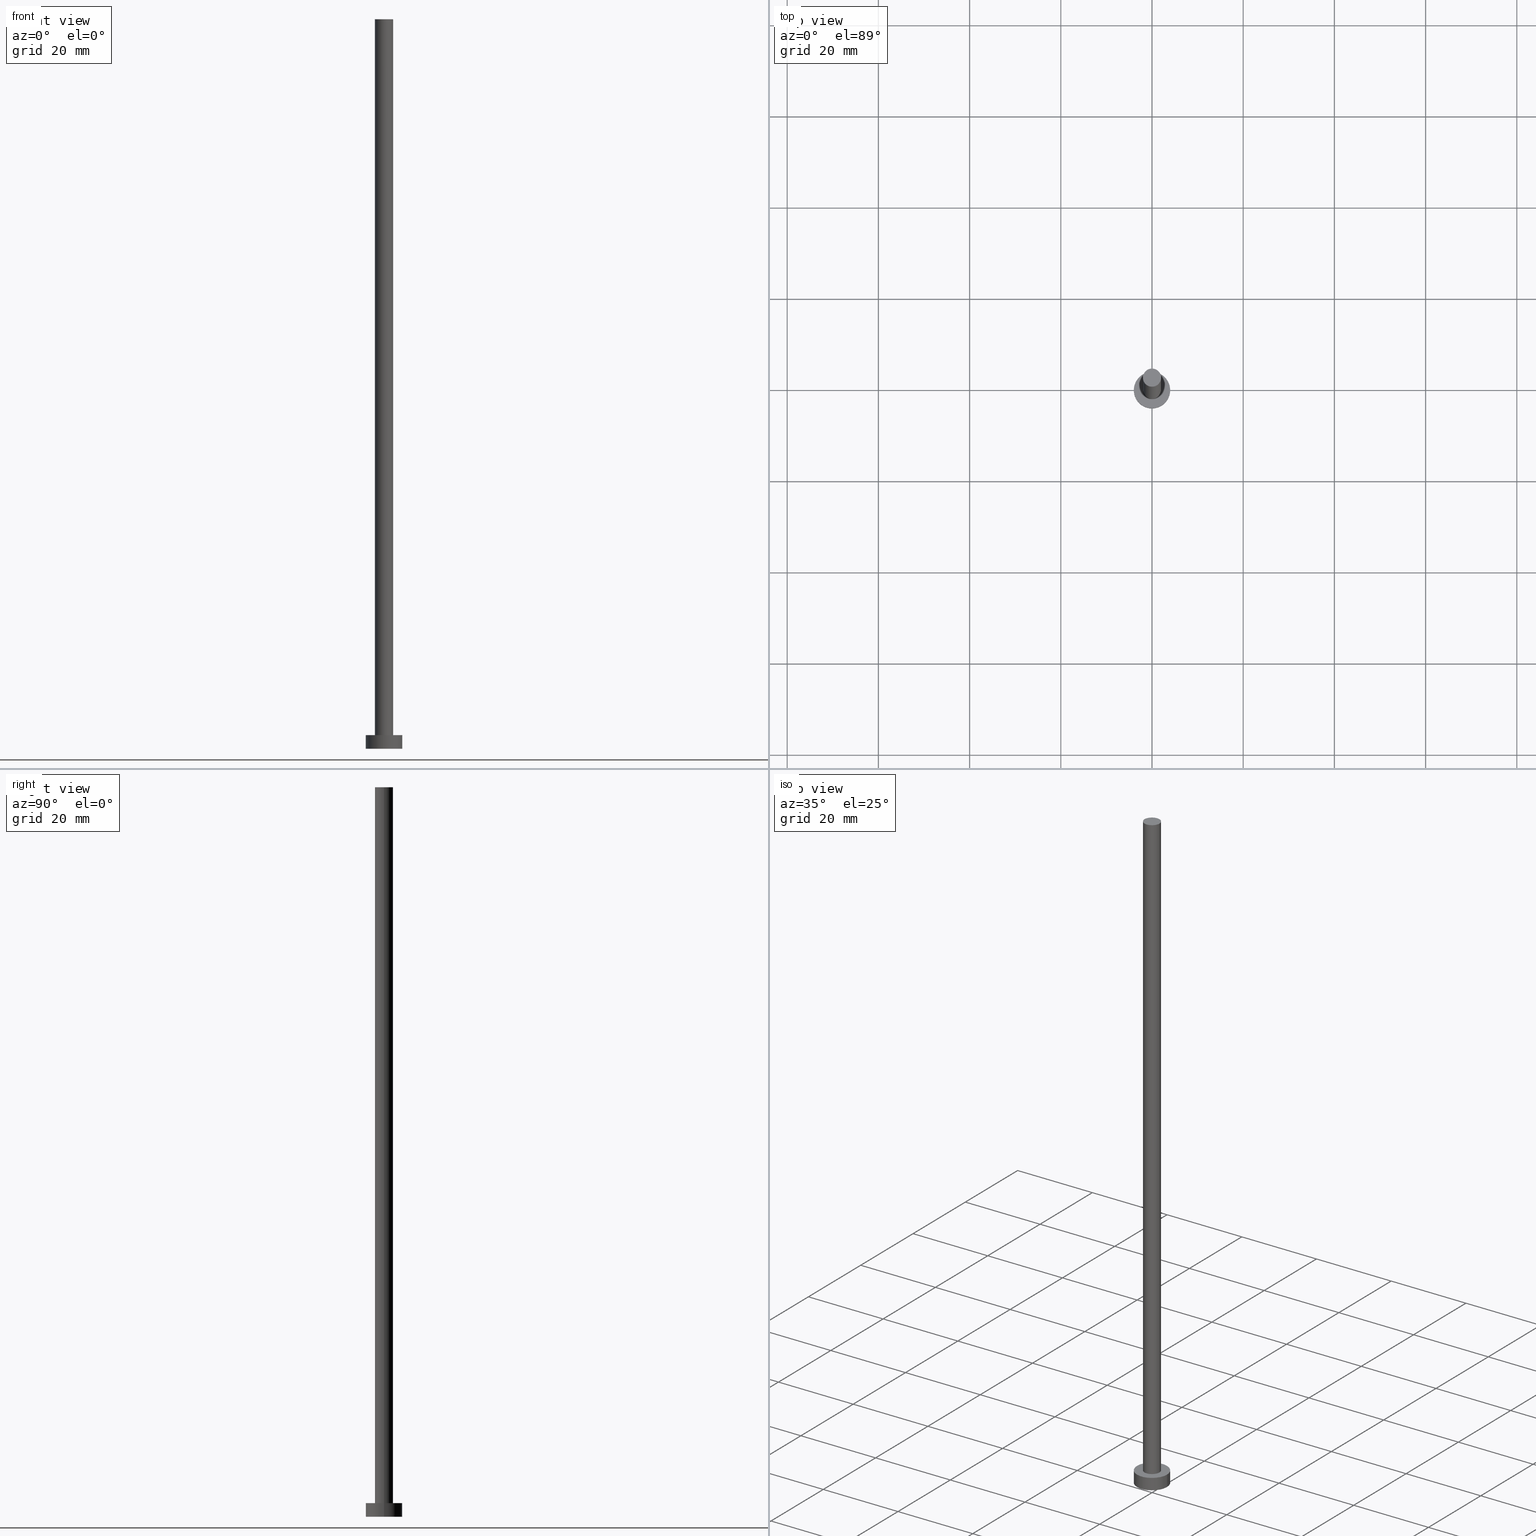
[diagram: canonical four-view strip — front | top / right | iso, engineering-drawing reading convention]
A machine part, canonical four-view strip (front | top / right | iso — engineering-drawing reading convention). The complete STEP part file that produces these views, byte-faithful:
ISO-10303-21;
HEADER;
FILE_DESCRIPTION (( 'STEP AP203' ),
    '1' );
FILE_NAME ('0d84.STEP',
    '2023-02-13T16:10:28',
    ( '' ),
    ( '' ),
    'SwSTEP 2.0',
    'SolidWorks 2019',
    '' );
FILE_SCHEMA (( 'CONFIG_CONTROL_DESIGN' ));
ENDSEC;

DATA;
#1 = DIRECTION ( 'NONE',  ( -0.000000000000000000, -0.000000000000000000, -1.000000000000000000 ) ) ;
#2 = AXIS2_PLACEMENT_3D ( 'NONE', #165, #85, #160 ) ;
#3 = APPROVAL_STATUS ( 'not_yet_approved' ) ;
#4 = AXIS2_PLACEMENT_3D ( 'NONE', #68, #56, #157 ) ;
#5 = AXIS2_PLACEMENT_3D ( 'NONE', #112, #1, #161 ) ;
#6 = ORIENTED_EDGE ( 'NONE', *, *, #110, .F. ) ;
#7 = DIRECTION ( 'NONE',  ( 1.000000000000000000, 0.000000000000000000, 0.000000000000000000 ) ) ;
#8 = PRODUCT_DEFINITION_SHAPE ( 'NONE', 'NONE',  #23 ) ;
#9 = APPLICATION_PROTOCOL_DEFINITION ( 'international standard', 'config_control_design', 1994, #78 ) ;
#10 = ADVANCED_FACE ( 'NONE', ( #150 ), #72, .T. ) ;
#11 = DIRECTION ( 'NONE',  ( 0.000000000000000000, 0.000000000000000000, 1.000000000000000000 ) ) ;
#12 = CARTESIAN_POINT ( 'NONE',  ( 0.000000000000000000, 0.000000000000000000, 3.000000000000000000 ) ) ;
#13 = CARTESIAN_POINT ( 'NONE',  ( -4.000000000000000000, 0.000000000000000000, 3.000000000000000000 ) ) ;
#14 = PERSON_AND_ORGANIZATION_ROLE ( 'design_supplier' ) ;
#15 = ORIENTED_EDGE ( 'NONE', *, *, #222, .F. ) ;
#16 = LOCAL_TIME ( 17, 10, 28.00000000000000000, #90 ) ;
#17 = DATE_AND_TIME ( #138, #16 ) ;
#18 = VERTEX_POINT ( 'NONE', #177 ) ;
#19 = PLANE ( 'NONE',  #132 ) ;
#20 = ORIENTED_EDGE ( 'NONE', *, *, #80, .T. ) ;
#21 = CALENDAR_DATE ( 2023, 13, 2 ) ;
#22 = DIRECTION ( 'NONE',  ( -1.000000000000000000, 0.000000000000000000, 0.000000000000000000 ) ) ;
#23 = PRODUCT_DEFINITION ( 'NEZN�M�', '', #44, #244 ) ;
#24 = CARTESIAN_POINT ( 'NONE',  ( 2.000000000000000000, 2.449293598294706414E-16, 160.0000000000000000 ) ) ;
#25 = LINE ( 'NONE', #113, #216 ) ;
#26 = CARTESIAN_POINT ( 'NONE',  ( 4.000000000000000000, 4.898587196589412829E-16, 0.000000000000000000 ) ) ;
#27 = CYLINDRICAL_SURFACE ( 'NONE', #5, 4.000000000000000000 ) ;
#28 = PERSON_AND_ORGANIZATION ( #81, #127 ) ;
#29 = CARTESIAN_POINT ( 'NONE',  ( 0.000000000000000000, 0.000000000000000000, 160.0000000000000000 ) ) ;
#30 = DATE_AND_TIME ( #242, #186 ) ;
#31 = APPROVAL_PERSON_ORGANIZATION ( #248, #51, #239 ) ;
#32 = CC_DESIGN_SECURITY_CLASSIFICATION ( #120, ( #44 ) ) ;
#33 = EDGE_CURVE ( 'NONE', #234, #175, #223, .T. ) ;
#34 = EDGE_LOOP ( 'NONE', ( #147, #95 ) ) ;
#35 = CARTESIAN_POINT ( 'NONE',  ( -4.000000000000000000, 0.000000000000000000, 0.000000000000000000 ) ) ;
#36 = EDGE_LOOP ( 'NONE', ( #49, #69 ) ) ;
#37 = LOCAL_TIME ( 17, 10, 28.00000000000000000, #140 ) ;
#38 = ORIENTED_EDGE ( 'NONE', *, *, #76, .F. ) ;
#39 = PERSON_AND_ORGANIZATION_ROLE ( 'classification_officer' ) ;
#40 = ORIENTED_EDGE ( 'NONE', *, *, #33, .T. ) ;
#41 = EDGE_CURVE ( 'NONE', #93, #152, #103, .T. ) ;
#42 = CARTESIAN_POINT ( 'NONE',  ( 0.000000000000000000, 0.000000000000000000, 3.000000000000000000 ) ) ;
#43 = DIRECTION ( 'NONE',  ( -0.000000000000000000, -0.000000000000000000, -1.000000000000000000 ) ) ;
#44 = PRODUCT_DEFINITION_FORMATION_WITH_SPECIFIED_SOURCE ( 'LIBOVOLN�', '', #67, .NOT_KNOWN. ) ;
#45 = CIRCLE ( 'NONE', #204, 4.000000000000000000 ) ;
#46 = COORDINATED_UNIVERSAL_TIME_OFFSET ( 1, 0, .AHEAD. ) ;
#47 = CC_DESIGN_DATE_AND_TIME_ASSIGNMENT ( #17, #213, ( #23 ) ) ;
#48 = VECTOR ( 'NONE', #43, 1000.000000000000000 ) ;
#49 = ORIENTED_EDGE ( 'NONE', *, *, #41, .T. ) ;
#50 = APPROVAL_DATE_TIME ( #30, #104 ) ;
#51 = APPROVAL ( #180, 'NEUR�EN�' ) ;
#52 = PERSON_AND_ORGANIZATION ( #81, #127 ) ;
#53 = DIRECTION ( 'NONE',  ( 1.000000000000000000, 0.000000000000000000, 0.000000000000000000 ) ) ;
#54 = DATE_AND_TIME ( #75, #37 ) ;
#55 = FACE_OUTER_BOUND ( 'NONE', #170, .T. ) ;
#56 = DIRECTION ( 'NONE',  ( -0.000000000000000000, -0.000000000000000000, -1.000000000000000000 ) ) ;
#57 = EDGE_CURVE ( 'NONE', #93, #218, #74, .T. ) ;
#58 = APPROVAL_STATUS ( 'not_yet_approved' ) ;
#59 = DIRECTION ( 'NONE',  ( 1.000000000000000000, 0.000000000000000000, 0.000000000000000000 ) ) ;
#60 = VECTOR ( 'NONE', #153, 1000.000000000000000 ) ;
#61 = FACE_BOUND ( 'NONE', #172, .T. ) ;
#62 = ADVANCED_FACE ( 'NONE', ( #238 ), #182, .T. ) ;
#63 = APPLICATION_PROTOCOL_DEFINITION ( 'international standard', 'config_control_design', 1994, #226 ) ;
#64 = AXIS2_PLACEMENT_3D ( 'NONE', #158, #201, #22 ) ;
#65 = AXIS2_PLACEMENT_3D ( 'NONE', #124, #92, #169 ) ;
#66 = CC_DESIGN_DATE_AND_TIME_ASSIGNMENT ( #176, #189, ( #120 ) ) ;
#67 = PRODUCT ( '0d84', '0d84', '', ( #129 ) ) ;
#68 = CARTESIAN_POINT ( 'NONE',  ( 0.000000000000000000, 0.000000000000000000, 160.0000000000000000 ) ) ;
#69 = ORIENTED_EDGE ( 'NONE', *, *, #133, .T. ) ;
#70 = ORIENTED_EDGE ( 'NONE', *, *, #133, .F. ) ;
#71 = DIRECTION ( 'NONE',  ( 1.000000000000000000, 0.000000000000000000, -0.000000000000000000 ) ) ;
#72 = CYLINDRICAL_SURFACE ( 'NONE', #64, 4.000000000000000000 ) ;
#73 = ORIENTED_EDGE ( 'NONE', *, *, #181, .F. ) ;
#74 = LINE ( 'NONE', #143, #48 ) ;
#75 = CALENDAR_DATE ( 2023, 13, 2 ) ;
#76 = EDGE_CURVE ( 'NONE', #136, #218, #241, .T. ) ;
#77 = CC_DESIGN_PERSON_AND_ORGANIZATION_ASSIGNMENT ( #134, #14, ( #44 ) ) ;
#78 = APPLICATION_CONTEXT ( 'configuration controlled 3d designs of mechanical parts and assemblies' ) ;
#79 = AXIS2_PLACEMENT_3D ( 'NONE', #100, #229, #53 ) ;
#80 = EDGE_CURVE ( 'NONE', #175, #234, #128, .T. ) ;
#81 = PERSON ( 'NEUR�EN�', 'NEUR�EN�', 'NEUR�EN�', ('NEUR�EN�'), ('NEUR�EN�'), ('NEUR�EN�') ) ;
#82 = APPROVAL_ROLE ( '' ) ;
#83 = DIRECTION ( 'NONE',  ( 1.000000000000000000, 0.000000000000000000, -0.000000000000000000 ) ) ;
#84 = ORIENTED_EDGE ( 'NONE', *, *, #131, .F. ) ;
#85 = DIRECTION ( 'NONE',  ( 0.000000000000000000, 0.000000000000000000, 1.000000000000000000 ) ) ;
#86 = FACE_OUTER_BOUND ( 'NONE', #36, .T. ) ;
#87 = DIRECTION ( 'NONE',  ( 0.000000000000000000, 0.000000000000000000, 1.000000000000000000 ) ) ;
#88 = COORDINATED_UNIVERSAL_TIME_OFFSET ( 1, 0, .AHEAD. ) ;
#89 = VERTEX_POINT ( 'NONE', #190 ) ;
#90 = COORDINATED_UNIVERSAL_TIME_OFFSET ( 1, 0, .AHEAD. ) ;
#91 = EDGE_LOOP ( 'NONE', ( #70, #196, #101, #178 ) ) ;
#92 = DIRECTION ( 'NONE',  ( 0.000000000000000000, 0.000000000000000000, 1.000000000000000000 ) ) ;
#93 = VERTEX_POINT ( 'NONE', #13 ) ;
#94 = DIRECTION ( 'NONE',  ( 0.000000000000000000, 0.000000000000000000, 1.000000000000000000 ) ) ;
#95 = ORIENTED_EDGE ( 'NONE', *, *, #110, .T. ) ;
#96 = ADVANCED_FACE ( 'NONE', ( #171 ), #211, .T. ) ;
#97 = LINE ( 'NONE', #117, #60 ) ;
#98 = ORIENTED_EDGE ( 'NONE', *, *, #125, .F. ) ;
#99 = PERSON_AND_ORGANIZATION_ROLE ( 'creator' ) ;
#100 = CARTESIAN_POINT ( 'NONE',  ( 0.000000000000000000, 0.000000000000000000, 3.000000000000000000 ) ) ;
#101 = ORIENTED_EDGE ( 'NONE', *, *, #76, .T. ) ;
#102 = DIRECTION ( 'NONE',  ( -0.000000000000000000, -0.000000000000000000, -1.000000000000000000 ) ) ;
#103 = CIRCLE ( 'NONE', #151, 4.000000000000000000 ) ;
#104 = APPROVAL ( #3, 'NEUR�EN�' ) ;
#105 = CC_DESIGN_APPROVAL ( #51, ( #120 ) ) ;
#106 = DIRECTION ( 'NONE',  ( -0.000000000000000000, -0.000000000000000000, -1.000000000000000000 ) ) ;
#107 = ORIENTED_EDGE ( 'NONE', *, *, #145, .F. ) ;
#108 = FACE_OUTER_BOUND ( 'NONE', #233, .T. ) ;
#109 = MANIFOLD_SOLID_BREP ( 'P�idat vysunut�m3', #139 ) ;
#110 = EDGE_CURVE ( 'NONE', #89, #18, #227, .T. ) ;
#111 =( NAMED_UNIT ( * ) PLANE_ANGLE_UNIT ( ) SI_UNIT ( $, .RADIAN. ) );
#112 = CARTESIAN_POINT ( 'NONE',  ( 0.000000000000000000, 0.000000000000000000, 3.000000000000000000 ) ) ;
#113 = CARTESIAN_POINT ( 'NONE',  ( -2.000000000000000000, 0.000000000000000000, 160.0000000000000000 ) ) ;
#114 = CC_DESIGN_PERSON_AND_ORGANIZATION_ASSIGNMENT ( #52, #251, ( #44 ) ) ;
#115 =( NAMED_UNIT ( * ) SI_UNIT ( $, .STERADIAN. ) SOLID_ANGLE_UNIT ( ) );
#116 = DIRECTION ( 'NONE',  ( 0.000000000000000000, 0.000000000000000000, 1.000000000000000000 ) ) ;
#117 = CARTESIAN_POINT ( 'NONE',  ( 4.000000000000000000, 4.898587196589412829E-16, 3.000000000000000000 ) ) ;
#118 = AXIS2_PLACEMENT_3D ( 'NONE', #126, #206, #221 ) ;
#119 = ORIENTED_EDGE ( 'NONE', *, *, #181, .T. ) ;
#120 = SECURITY_CLASSIFICATION ( '', '', #220 ) ;
#121 = CALENDAR_DATE ( 2023, 13, 2 ) ;
#122 = CARTESIAN_POINT ( 'NONE',  ( -2.000000000000000000, 0.000000000000000000, 3.000000000000000000 ) ) ;
#123 = CYLINDRICAL_SURFACE ( 'NONE', #4, 2.000000000000000000 ) ;
#124 = CARTESIAN_POINT ( 'NONE',  ( 0.000000000000000000, 0.000000000000000000, 0.000000000000000000 ) ) ;
#125 = EDGE_CURVE ( 'NONE', #89, #175, #202, .T. ) ;
#126 = CARTESIAN_POINT ( 'NONE',  ( 0.000000000000000000, 0.000000000000000000, 160.0000000000000000 ) ) ;
#127 = ORGANIZATION ( 'NEUR�EN�', 'NEUR�EN�', '' ) ;
#128 = CIRCLE ( 'NONE', #164, 2.000000000000000000 ) ;
#129 = MECHANICAL_CONTEXT ( 'NONE', #78, 'mechanical' ) ;
#130 = AXIS2_PLACEMENT_3D ( 'NONE', #42, #254, #207 ) ;
#131 = EDGE_CURVE ( 'NONE', #18, #89, #225, .T. ) ;
#132 = AXIS2_PLACEMENT_3D ( 'NONE', #12, #195, #71 ) ;
#133 = EDGE_CURVE ( 'NONE', #152, #93, #243, .T. ) ;
#134 = PERSON_AND_ORGANIZATION ( #81, #127 ) ;
#135 = CARTESIAN_POINT ( 'NONE',  ( 0.000000000000000000, 0.000000000000000000, 3.000000000000000000 ) ) ;
#136 = VERTEX_POINT ( 'NONE', #26 ) ;
#137 = FACE_OUTER_BOUND ( 'NONE', #188, .T. ) ;
#138 = CALENDAR_DATE ( 2023, 13, 2 ) ;
#139 = CLOSED_SHELL ( 'NONE', ( #247, #10, #141, #192, #198, #62, #96 ) ) ;
#140 = COORDINATED_UNIVERSAL_TIME_OFFSET ( 1, 0, .AHEAD. ) ;
#141 = ADVANCED_FACE ( 'NONE', ( #108 ), #27, .T. ) ;
#142 = APPROVAL_PERSON_ORGANIZATION ( #149, #148, #155 ) ;
#143 = CARTESIAN_POINT ( 'NONE',  ( -4.000000000000000000, 0.000000000000000000, 3.000000000000000000 ) ) ;
#144 = LOCAL_TIME ( 17, 10, 28.00000000000000000, #88 ) ;
#145 = EDGE_CURVE ( 'NONE', #18, #234, #25, .T. ) ;
#146 = AXIS2_PLACEMENT_3D ( 'NONE', #179, #235, #59 ) ;
#147 = ORIENTED_EDGE ( 'NONE', *, *, #131, .T. ) ;
#148 = APPROVAL ( #58, 'NEUR�EN�' ) ;
#149 = PERSON_AND_ORGANIZATION ( #81, #127 ) ;
#150 = FACE_OUTER_BOUND ( 'NONE', #91, .T. ) ;
#151 = AXIS2_PLACEMENT_3D ( 'NONE', #135, #94, #156 ) ;
#152 = VERTEX_POINT ( 'NONE', #162 ) ;
#153 = DIRECTION ( 'NONE',  ( -0.000000000000000000, -0.000000000000000000, -1.000000000000000000 ) ) ;
#154 = CC_DESIGN_APPROVAL ( #148, ( #44 ) ) ;
#155 = APPROVAL_ROLE ( '' ) ;
#156 = DIRECTION ( 'NONE',  ( 1.000000000000000000, 0.000000000000000000, 0.000000000000000000 ) ) ;
#157 = DIRECTION ( 'NONE',  ( -1.000000000000000000, 0.000000000000000000, 0.000000000000000000 ) ) ;
#158 = CARTESIAN_POINT ( 'NONE',  ( 0.000000000000000000, 0.000000000000000000, 3.000000000000000000 ) ) ;
#159 = ORIENTED_EDGE ( 'NONE', *, *, #145, .T. ) ;
#160 = DIRECTION ( 'NONE',  ( 1.000000000000000000, 0.000000000000000000, 0.000000000000000000 ) ) ;
#161 = DIRECTION ( 'NONE',  ( -1.000000000000000000, 0.000000000000000000, 0.000000000000000000 ) ) ;
#162 = CARTESIAN_POINT ( 'NONE',  ( 4.000000000000000000, 4.898587196589412829E-16, 3.000000000000000000 ) ) ;
#163 = DIRECTION ( 'NONE',  ( 1.000000000000000000, 0.000000000000000000, 0.000000000000000000 ) ) ;
#164 = AXIS2_PLACEMENT_3D ( 'NONE', #193, #87, #7 ) ;
#165 = CARTESIAN_POINT ( 'NONE',  ( 0.000000000000000000, 0.000000000000000000, 160.0000000000000000 ) ) ;
#166 = ORIENTED_EDGE ( 'NONE', *, *, #125, .T. ) ;
#167 = UNCERTAINTY_MEASURE_WITH_UNIT (LENGTH_MEASURE( 1.000000000000000082E-05 ), #168, 'distance_accuracy_value', 'NONE');
#168 =( LENGTH_UNIT ( ) NAMED_UNIT ( * ) SI_UNIT ( .MILLI., .METRE. ) );
#169 = DIRECTION ( 'NONE',  ( 1.000000000000000000, 0.000000000000000000, -0.000000000000000000 ) ) ;
#170 = EDGE_LOOP ( 'NONE', ( #6, #166, #20, #107 ) ) ;
#171 = FACE_OUTER_BOUND ( 'NONE', #34, .T. ) ;
#172 = EDGE_LOOP ( 'NONE', ( #214, #245 ) ) ;
#173 = APPROVAL_DATE_TIME ( #228, #148 ) ;
#174 = CC_DESIGN_PERSON_AND_ORGANIZATION_ASSIGNMENT ( #249, #99, ( #23 ) ) ;
#175 = VERTEX_POINT ( 'NONE', #184 ) ;
#176 = DATE_AND_TIME ( #21, #144 ) ;
#177 = CARTESIAN_POINT ( 'NONE',  ( -2.000000000000000000, 0.000000000000000000, 160.0000000000000000 ) ) ;
#178 = ORIENTED_EDGE ( 'NONE', *, *, #57, .F. ) ;
#179 = CARTESIAN_POINT ( 'NONE',  ( 0.000000000000000000, 0.000000000000000000, 160.0000000000000000 ) ) ;
#180 = APPROVAL_STATUS ( 'not_yet_approved' ) ;
#181 = EDGE_CURVE ( 'NONE', #218, #136, #45, .T. ) ;
#182 = CYLINDRICAL_SURFACE ( 'NONE', #118, 2.000000000000000000 ) ;
#183 = EDGE_LOOP ( 'NONE', ( #98, #84, #159, #40 ) ) ;
#184 = CARTESIAN_POINT ( 'NONE',  ( 2.000000000000000000, 2.449293598294706414E-16, 3.000000000000000000 ) ) ;
#185 = PERSON_AND_ORGANIZATION ( #81, #127 ) ;
#186 = LOCAL_TIME ( 17, 10, 28.00000000000000000, #46 ) ;
#187 = APPROVAL_PERSON_ORGANIZATION ( #28, #104, #82 ) ;
#188 = EDGE_LOOP ( 'NONE', ( #73, #38 ) ) ;
#189 = DATE_TIME_ROLE ( 'classification_date' ) ;
#190 = CARTESIAN_POINT ( 'NONE',  ( 2.000000000000000000, 2.449293598294706414E-16, 160.0000000000000000 ) ) ;
#191 = CC_DESIGN_APPROVAL ( #104, ( #23 ) ) ;
#192 = ADVANCED_FACE ( 'NONE', ( #61, #86 ), #19, .T. ) ;
#193 = CARTESIAN_POINT ( 'NONE',  ( 0.000000000000000000, 0.000000000000000000, 3.000000000000000000 ) ) ;
#194 = ADVANCED_BREP_SHAPE_REPRESENTATION ( '0d84', ( #109, #237 ), #253 ) ;
#195 = DIRECTION ( 'NONE',  ( 0.000000000000000000, 0.000000000000000000, 1.000000000000000000 ) ) ;
#196 = ORIENTED_EDGE ( 'NONE', *, *, #222, .T. ) ;
#197 = VECTOR ( 'NONE', #102, 1000.000000000000000 ) ;
#198 = ADVANCED_FACE ( 'NONE', ( #137 ), #199, .F. ) ;
#199 = PLANE ( 'NONE',  #65 ) ;
#200 = ORIENTED_EDGE ( 'NONE', *, *, #41, .F. ) ;
#201 = DIRECTION ( 'NONE',  ( -0.000000000000000000, -0.000000000000000000, -1.000000000000000000 ) ) ;
#202 = LINE ( 'NONE', #24, #197 ) ;
#203 = AXIS2_PLACEMENT_3D ( 'NONE', #29, #116, #83 ) ;
#204 = AXIS2_PLACEMENT_3D ( 'NONE', #255, #240, #236 ) ;
#205 = LOCAL_TIME ( 17, 10, 28.00000000000000000, #212 ) ;
#206 = DIRECTION ( 'NONE',  ( -0.000000000000000000, -0.000000000000000000, -1.000000000000000000 ) ) ;
#207 = DIRECTION ( 'NONE',  ( 1.000000000000000000, 0.000000000000000000, 0.000000000000000000 ) ) ;
#208 = PRODUCT_RELATED_PRODUCT_CATEGORY ( 'detail', '', ( #67 ) ) ;
#209 = CARTESIAN_POINT ( 'NONE',  ( 0.000000000000000000, 0.000000000000000000, 0.000000000000000000 ) ) ;
#210 = PERSON_AND_ORGANIZATION_ROLE ( 'design_owner' ) ;
#211 = PLANE ( 'NONE',  #203 ) ;
#212 = COORDINATED_UNIVERSAL_TIME_OFFSET ( 1, 0, .AHEAD. ) ;
#213 = DATE_TIME_ROLE ( 'creation_date' ) ;
#214 = ORIENTED_EDGE ( 'NONE', *, *, #33, .F. ) ;
#215 = CARTESIAN_POINT ( 'NONE',  ( 0.000000000000000000, 0.000000000000000000, 0.000000000000000000 ) ) ;
#216 = VECTOR ( 'NONE', #106, 1000.000000000000000 ) ;
#217 = APPROVAL_DATE_TIME ( #54, #51 ) ;
#218 = VERTEX_POINT ( 'NONE', #35 ) ;
#219 = CC_DESIGN_PERSON_AND_ORGANIZATION_ASSIGNMENT ( #232, #39, ( #120 ) ) ;
#220 = SECURITY_CLASSIFICATION_LEVEL ( 'unclassified' ) ;
#221 = DIRECTION ( 'NONE',  ( -1.000000000000000000, 0.000000000000000000, 0.000000000000000000 ) ) ;
#222 = EDGE_CURVE ( 'NONE', #152, #136, #97, .T. ) ;
#223 = CIRCLE ( 'NONE', #79, 2.000000000000000000 ) ;
#224 = DIRECTION ( 'NONE',  ( 0.000000000000000000, 0.000000000000000000, 1.000000000000000000 ) ) ;
#225 = CIRCLE ( 'NONE', #146, 2.000000000000000000 ) ;
#226 = APPLICATION_CONTEXT ( 'configuration controlled 3d designs of mechanical parts and assemblies' ) ;
#227 = CIRCLE ( 'NONE', #2, 2.000000000000000000 ) ;
#228 = DATE_AND_TIME ( #121, #205 ) ;
#229 = DIRECTION ( 'NONE',  ( 0.000000000000000000, 0.000000000000000000, 1.000000000000000000 ) ) ;
#230 = ORIENTED_EDGE ( 'NONE', *, *, #57, .T. ) ;
#231 = CC_DESIGN_PERSON_AND_ORGANIZATION_ASSIGNMENT ( #185, #210, ( #67 ) ) ;
#232 = PERSON_AND_ORGANIZATION ( #81, #127 ) ;
#233 = EDGE_LOOP ( 'NONE', ( #15, #200, #230, #119 ) ) ;
#234 = VERTEX_POINT ( 'NONE', #122 ) ;
#235 = DIRECTION ( 'NONE',  ( 0.000000000000000000, 0.000000000000000000, 1.000000000000000000 ) ) ;
#236 = DIRECTION ( 'NONE',  ( 1.000000000000000000, 0.000000000000000000, 0.000000000000000000 ) ) ;
#237 = AXIS2_PLACEMENT_3D ( 'NONE', #209, #224, #163 ) ;
#238 = FACE_OUTER_BOUND ( 'NONE', #183, .T. ) ;
#239 = APPROVAL_ROLE ( '' ) ;
#240 = DIRECTION ( 'NONE',  ( 0.000000000000000000, 0.000000000000000000, 1.000000000000000000 ) ) ;
#241 = CIRCLE ( 'NONE', #252, 4.000000000000000000 ) ;
#242 = CALENDAR_DATE ( 2023, 13, 2 ) ;
#243 = CIRCLE ( 'NONE', #130, 4.000000000000000000 ) ;
#244 = DESIGN_CONTEXT ( 'detailed design', #226, 'design' ) ;
#245 = ORIENTED_EDGE ( 'NONE', *, *, #80, .F. ) ;
#246 = DIRECTION ( 'NONE',  ( 1.000000000000000000, 0.000000000000000000, 0.000000000000000000 ) ) ;
#247 = ADVANCED_FACE ( 'NONE', ( #55 ), #123, .T. ) ;
#248 = PERSON_AND_ORGANIZATION ( #81, #127 ) ;
#249 = PERSON_AND_ORGANIZATION ( #81, #127 ) ;
#250 = SHAPE_DEFINITION_REPRESENTATION ( #8, #194 ) ;
#251 = PERSON_AND_ORGANIZATION_ROLE ( 'creator' ) ;
#252 = AXIS2_PLACEMENT_3D ( 'NONE', #215, #11, #246 ) ;
#253 =( GEOMETRIC_REPRESENTATION_CONTEXT ( 3 ) GLOBAL_UNCERTAINTY_ASSIGNED_CONTEXT ( ( #167 ) ) GLOBAL_UNIT_ASSIGNED_CONTEXT ( ( #168, #111, #115 ) ) REPRESENTATION_CONTEXT ( 'NONE', 'WORKASPACE' ) );
#254 = DIRECTION ( 'NONE',  ( 0.000000000000000000, 0.000000000000000000, 1.000000000000000000 ) ) ;
#255 = CARTESIAN_POINT ( 'NONE',  ( 0.000000000000000000, 0.000000000000000000, 0.000000000000000000 ) ) ;
ENDSEC;
END-ISO-10303-21;
